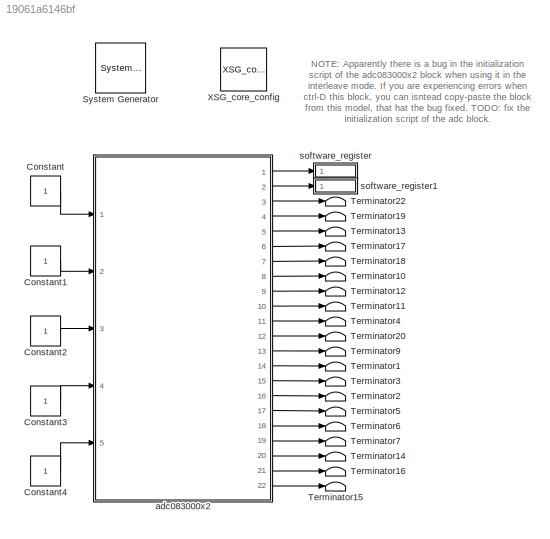
MODEL slx_19061a6146bf
KIND model
BLOCK [Reference]  System Generator  REF=xbsIndex_r4/ System Generator
  AttributesFormatString = System\nGenerator
  Impl_file = ISE Defaults
  Ports = []
  SourceBlock = xbsIndex_r4/ System Generator
  SourceType = Xilinx System Generator Block
  Synth_file = XST Defaults
  Tag = genX
  UserDataPersistent = on
  block_type = sysgen
  clock_wrapper = Clock Enables
  core_generation = According to Block Masks
  dbl_ovrd = According to Block Masks
  dcm_input_clock_period = 100
  deprecated_control = off
  directory = ./adc083000_interleave/sysgen
  eval_field = 0
  has_advanced_control = 0
  incr_netlist = off
  infoedit = System Generator
  package = ff1136
  part = xc5vsx95t
  proj_type = Project Navigator
  run_coregen = off
  sg_icon_stat = 50,50,0,0,token,white,0,58c5b5770fe5f7c311f53dbc6e73f0f6,right,,[ ],[ ]
  sg_mask_display = fprintf('','COMMENT: begin icon graphics');\npatch([0 50 50 0 0 ],[0 0 50 50 0 ],[1 1 1 ]);\npatch([1.6375 16.81 27.31 37.81 48.31 27.31 12.1375 1.6375 ],[36.655 36.655 47.155 36.655 47.155 47.155 47.155 36.655 ],[0.933333 0.203922 0.141176 ]);\npatch([12.1375 27.31 16.81 1.6375 12.1375 ],[26.155 26.155 36.655 36.655 26.155 ],[0.698039 0.0313725 0.219608 ]);\npatch([1.6375 16.81 27.31 12.1375 1.6375 ]...<+327ch>
  sggui_pos = 326,212,464,470
  simulink_period = 1
  speed = -1
  synthesis_tool = XST
  sysclk_period = 8
  testbench = off
  trim_vbits = Everywhere in SubSystem
  xilinxfamily = virtex5
BLOCK [Constant] Constant
BLOCK [Constant] Constant1
BLOCK [Constant] Constant2
BLOCK [Constant] Constant3
BLOCK [Constant] Constant4
BLOCK [Terminator] Terminator1
BLOCK [Terminator] Terminator10
BLOCK [Terminator] Terminator11
BLOCK [Terminator] Terminator12
BLOCK [Terminator] Terminator13
BLOCK [Terminator] Terminator14
BLOCK [Terminator] Terminator15
BLOCK [Terminator] Terminator16
BLOCK [Terminator] Terminator17
BLOCK [Terminator] Terminator18
BLOCK [Terminator] Terminator19
BLOCK [Terminator] Terminator2
BLOCK [Terminator] Terminator20
BLOCK [Terminator] Terminator22
BLOCK [Terminator] Terminator3
BLOCK [Terminator] Terminator4
BLOCK [Terminator] Terminator5
BLOCK [Terminator] Terminator6
BLOCK [Terminator] Terminator7
BLOCK [Terminator] Terminator9
BLOCK [Reference] XSG_core_config  REF=xps_library/XSG_core_config  (lib defined in mdl_00b5cec29cd0, mdl_02ab6ecaa3d1, +5 more)
  MKDIG_clk_src = sys_clk
  Ports = []
  ROACH2_clk_src = adc0_clk
  ROACH_clk_src = adc0_clk
  SourceBlock = xps_library/XSG_core_config
  SourceType = xsg core config
  Tag = xps:xsg
  clk_rate = 125
  clk_src = adc0_clk
  hw_sys = ROACH:sx95t
  sample_period = 1
  synthesis_tool = XST
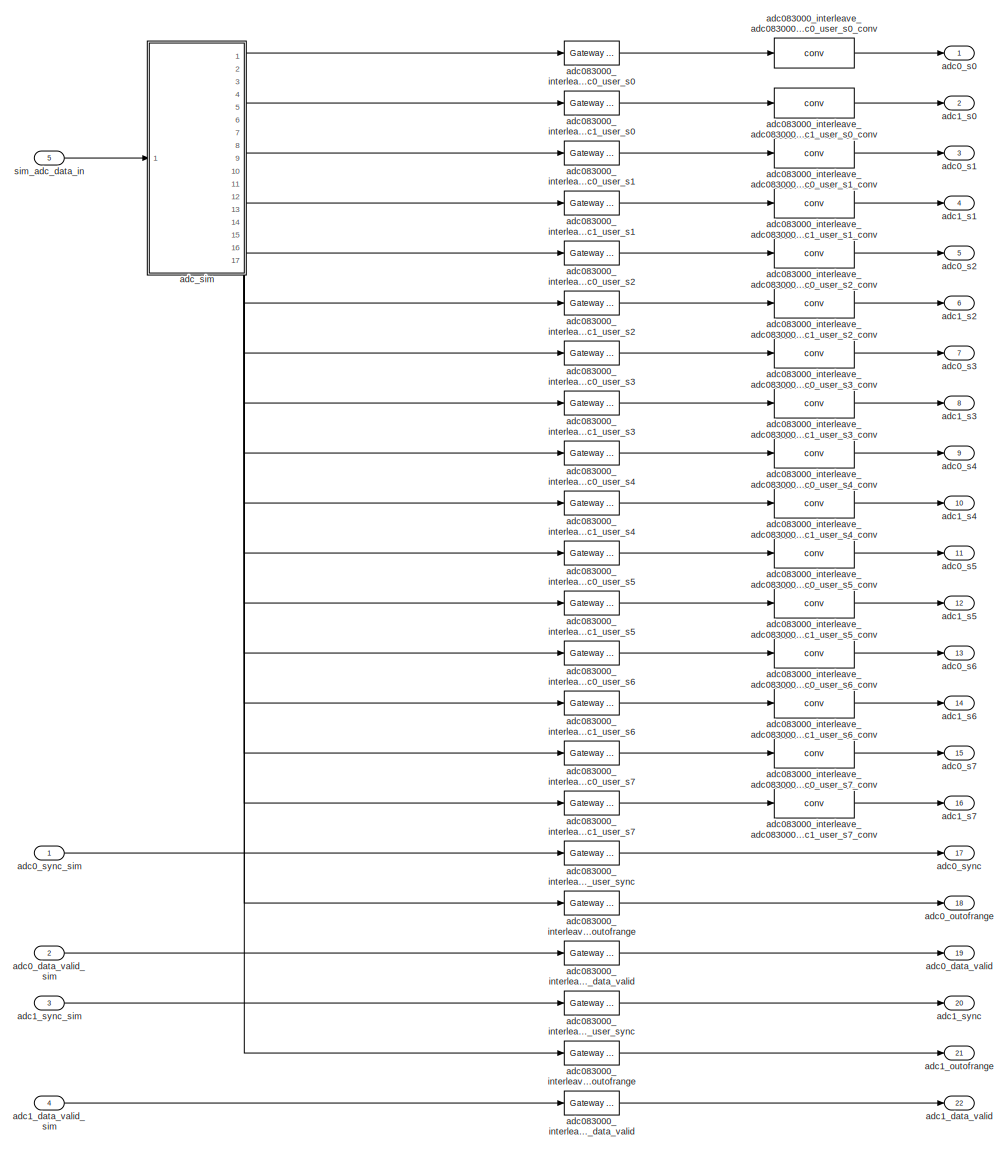
[diagram: adc083000x2 - part 1/1, most of the canvas]
BLOCK [SubSystem] adc083000x2
  AncestorBlock = xps_library/adc083000x2
  FunctionWithSeparateData = off
  MaskHideContents = off
  MinAlgLoopOccurrences = off
  Opaque = off
  Ports = [5, 22]
  PropExecContextOutsideSubsystem = off
  RTWSystemCode = Auto
  RequestExecContextInheritance = off
  Tag = xps:adc083000x2
BLOCK [Reference] adc083000x2/adc083000_interleave_adc083000x2_adc0_user_data_valid  REF=xbsIndex_r4/Gateway In
  ADCChannel = '1'
  LOCs = {}
  Ports = [1, 1]
  SourceBlock = xbsIndex_r4/Gateway In
  SourceType = Xilinx Gateway In Block
  UseAsADC = off
  arith_type = Unsigned
  bin_pt = 0
  block_type = gatewayin
  dbl_ovrd = off
  exp_width = 8
  frac_width = 24
  gui_display_data_type = Fixed-point
  has_advanced_control = 0
  hdl_port = on
  infoedit = Gateway in block.  Converts inputs of type Simulink integer, single, double and fixed-point to  Xilinx fixed-point or floating-point data type.<br><br>Hardware notes:  In hardware these blocks become top level input ports.  <repeated x22 — deduplicated; at blocks: adc083000_interleave_adc083000x2_adc0_user_data…, adc083000_interleave_adc083000x2_adc0_user_outo…, adc083000_interleave_adc083000x2_adc0_user_s0, adc083000_interleave_adc083000x2_adc0_user_s1, adc083000_interleave_adc083000x2_adc0_user_s2, adc083000_interleave_adc083000x2_adc0_user_s3, adc083000_interleave_adc083000x2_adc0_user_s4, adc083000_interleave_adc083000x2_adc0_user_s5, adc083000_interleave_adc083000x2_adc0_user_s6, adc083000_interleave_adc083000x2_adc0_user_s7, adc083000_interleave_adc083000x2_adc0_user_sync, adc083000_interleave_adc083000x2_adc1_user_data…, adc083000_interleave_adc083000x2_adc1_user_outo…, adc083000_interleave_adc083000x2_adc1_user_s0, adc083000_interleave_adc083000x2_adc1_user_s1, adc083000_interleave_adc083000x2_adc1_user_s2, +6 more>
  inherit_from_input = off
  locs_specified = off
  n_bits = 1
  overflow = Saturate
  period = 1
  preci_type = Single
  quantization = Round  (unbiased: +/- Inf)
  sg_icon_stat = 55,24,1,1,white,yellow,1,00d3666e,right,,[ ],[ ]
  sg_mask_display = fprintf('','COMMENT: begin icon graphics');\npatch([0 55 55 0 0 ],[0 0 24 24 0 ],[0.95 0.93 0.65 ]);\nplot([0 55 55 0 0 ],[0 0 24 24 0 ]);\npatch([20.325 24.66 27.66 30.66 33.66 27.66 23.325 20.325 ],[15.33 15.33 18.33 15.33 18.33 18.33 18.33 15.33 ],[1 1 1 ]);\npatch([23.325 27.66 24.66 20.325 23.325 ],[12.33 12.33 15.33 15.33 12.33 ],[0.985 0.979 0.895 ]);\npatch([20.325 24.66 27.66 23.325 20.325 ],[...<+395ch>  <repeated x22 — deduplicated; at blocks: adc083000_interleave_adc083000x2_adc0_user_data…, adc083000_interleave_adc083000x2_adc0_user_outo…, adc083000_interleave_adc083000x2_adc0_user_s0, adc083000_interleave_adc083000x2_adc0_user_s1, adc083000_interleave_adc083000x2_adc0_user_s2, adc083000_interleave_adc083000x2_adc0_user_s3, adc083000_interleave_adc083000x2_adc0_user_s4, adc083000_interleave_adc083000x2_adc0_user_s5, adc083000_interleave_adc083000x2_adc0_user_s6, adc083000_interleave_adc083000x2_adc0_user_s7, adc083000_interleave_adc083000x2_adc0_user_sync, adc083000_interleave_adc083000x2_adc1_user_data…, adc083000_interleave_adc083000x2_adc1_user_outo…, adc083000_interleave_adc083000x2_adc1_user_s0, adc083000_interleave_adc083000x2_adc1_user_s1, adc083000_interleave_adc083000x2_adc1_user_s2, +6 more>
  sggui_pos = -1,-1,-1,-1
  timing_constraint = None
  xl_area = [0,0,0,0,0,0,0]
  xl_use_area = off
BLOCK [Reference] adc083000x2/adc083000_interleave_adc083000x2_adc0_user_outofrange  REF=xbsIndex_r4/Gateway In
  ADCChannel = '1'
  LOCs = {}
  Ports = [1, 1]
  SourceBlock = xbsIndex_r4/Gateway In
  SourceType = Xilinx Gateway In Block
  UseAsADC = off
  arith_type = Unsigned
  bin_pt = 0
  block_type = gatewayin
  dbl_ovrd = off
  exp_width = 8
  frac_width = 24
  gui_display_data_type = Fixed-point
  has_advanced_control = 0
  hdl_port = on
  inherit_from_input = off
  locs_specified = off
  n_bits = 4
  overflow = Saturate
  period = 1
  preci_type = Single
  quantization = Round  (unbiased: +/- Inf)
  sg_icon_stat = 55,24,1,1,white,yellow,1,00d3666e,right,,[ ],[ ]
  sggui_pos = -1,-1,-1,-1
  timing_constraint = None
  xl_area = [0,0,0,0,0,0,0]
  xl_use_area = off
BLOCK [Reference] adc083000x2/adc083000_interleave_adc083000x2_adc0_user_s0  REF=xbsIndex_r4/Gateway In
  ADCChannel = '1'
  LOCs = {}
  Ports = [1, 1]
  SourceBlock = xbsIndex_r4/Gateway In
  SourceType = Xilinx Gateway In Block
  UseAsADC = off
  arith_type = Unsigned
  bin_pt = 0
  block_type = gatewayin
  dbl_ovrd = off
  exp_width = 8
  frac_width = 24
  gui_display_data_type = Fixed-point
  has_advanced_control = 0
  hdl_port = on
  inherit_from_input = off
  locs_specified = off
  n_bits = 8
  overflow = Saturate
  period = 1
  preci_type = Single
  quantization = Round  (unbiased: +/- Inf)
  sg_icon_stat = 55,24,1,1,white,yellow,1,00d3666e,right,,[ ],[ ]
  sggui_pos = -1,-1,-1,-1
  timing_constraint = None
  xl_area = [0,0,0,0,0,0,0]
  xl_use_area = off
BLOCK [Reference] adc083000x2/adc083000_interleave_adc083000x2_adc0_user_s0_conv  REF=xps_library/ADCs/conv  (lib defined in mdl_00b5cec29cd0, mdl_02ab6ecaa3d1, +5 more)
  Ports = [1, 1]
  SourceBlock = xps_library/ADCs/conv
  bit_width = 8
BLOCK [Reference] adc083000x2/adc083000_interleave_adc083000x2_adc0_user_s1  REF=xbsIndex_r4/Gateway In
  ADCChannel = '1'
  LOCs = {}
  Ports = [1, 1]
  SourceBlock = xbsIndex_r4/Gateway In
  SourceType = Xilinx Gateway In Block
  UseAsADC = off
  arith_type = Unsigned
  bin_pt = 0
  block_type = gatewayin
  dbl_ovrd = off
  exp_width = 8
  frac_width = 24
  gui_display_data_type = Fixed-point
  has_advanced_control = 0
  hdl_port = on
  inherit_from_input = off
  locs_specified = off
  n_bits = 8
  overflow = Saturate
  period = 1
  preci_type = Single
  quantization = Round  (unbiased: +/- Inf)
  sg_icon_stat = 55,24,1,1,white,yellow,1,00d3666e,right,,[ ],[ ]
  sggui_pos = -1,-1,-1,-1
  timing_constraint = None
  xl_area = [0,0,0,0,0,0,0]
  xl_use_area = off
BLOCK [Reference] adc083000x2/adc083000_interleave_adc083000x2_adc0_user_s1_conv  REF=xps_library/ADCs/conv  (lib defined in mdl_00b5cec29cd0, mdl_02ab6ecaa3d1, +5 more)
  Ports = [1, 1]
  SourceBlock = xps_library/ADCs/conv
  bit_width = 8
BLOCK [Reference] adc083000x2/adc083000_interleave_adc083000x2_adc0_user_s2  REF=xbsIndex_r4/Gateway In
  ADCChannel = '1'
  LOCs = {}
  Ports = [1, 1]
  SourceBlock = xbsIndex_r4/Gateway In
  SourceType = Xilinx Gateway In Block
  UseAsADC = off
  arith_type = Unsigned
  bin_pt = 0
  block_type = gatewayin
  dbl_ovrd = off
  exp_width = 8
  frac_width = 24
  gui_display_data_type = Fixed-point
  has_advanced_control = 0
  hdl_port = on
  inherit_from_input = off
  locs_specified = off
  n_bits = 8
  overflow = Saturate
  period = 1
  preci_type = Single
  quantization = Round  (unbiased: +/- Inf)
  sg_icon_stat = 55,24,1,1,white,yellow,1,00d3666e,right,,[ ],[ ]
  sggui_pos = -1,-1,-1,-1
  timing_constraint = None
  xl_area = [0,0,0,0,0,0,0]
  xl_use_area = off
BLOCK [Reference] adc083000x2/adc083000_interleave_adc083000x2_adc0_user_s2_conv  REF=xps_library/ADCs/conv  (lib defined in mdl_00b5cec29cd0, mdl_02ab6ecaa3d1, +5 more)
  Ports = [1, 1]
  SourceBlock = xps_library/ADCs/conv
  bit_width = 8
BLOCK [Reference] adc083000x2/adc083000_interleave_adc083000x2_adc0_user_s3  REF=xbsIndex_r4/Gateway In
  ADCChannel = '1'
  LOCs = {}
  Ports = [1, 1]
  SourceBlock = xbsIndex_r4/Gateway In
  SourceType = Xilinx Gateway In Block
  UseAsADC = off
  arith_type = Unsigned
  bin_pt = 0
  block_type = gatewayin
  dbl_ovrd = off
  exp_width = 8
  frac_width = 24
  gui_display_data_type = Fixed-point
  has_advanced_control = 0
  hdl_port = on
  inherit_from_input = off
  locs_specified = off
  n_bits = 8
  overflow = Saturate
  period = 1
  preci_type = Single
  quantization = Round  (unbiased: +/- Inf)
  sg_icon_stat = 55,24,1,1,white,yellow,1,00d3666e,right,,[ ],[ ]
  sggui_pos = -1,-1,-1,-1
  timing_constraint = None
  xl_area = [0,0,0,0,0,0,0]
  xl_use_area = off
BLOCK [Reference] adc083000x2/adc083000_interleave_adc083000x2_adc0_user_s3_conv  REF=xps_library/ADCs/conv  (lib defined in mdl_00b5cec29cd0, mdl_02ab6ecaa3d1, +5 more)
  Ports = [1, 1]
  SourceBlock = xps_library/ADCs/conv
  bit_width = 8
BLOCK [Reference] adc083000x2/adc083000_interleave_adc083000x2_adc0_user_s4  REF=xbsIndex_r4/Gateway In
  ADCChannel = '1'
  LOCs = {}
  Ports = [1, 1]
  SourceBlock = xbsIndex_r4/Gateway In
  SourceType = Xilinx Gateway In Block
  UseAsADC = off
  arith_type = Unsigned
  bin_pt = 0
  block_type = gatewayin
  dbl_ovrd = off
  exp_width = 8
  frac_width = 24
  gui_display_data_type = Fixed-point
  has_advanced_control = 0
  hdl_port = on
  inherit_from_input = off
  locs_specified = off
  n_bits = 8
  overflow = Saturate
  period = 1
  preci_type = Single
  quantization = Round  (unbiased: +/- Inf)
  sg_icon_stat = 55,24,1,1,white,yellow,1,00d3666e,right,,[ ],[ ]
  sggui_pos = -1,-1,-1,-1
  timing_constraint = None
  xl_area = [0,0,0,0,0,0,0]
  xl_use_area = off
BLOCK [Reference] adc083000x2/adc083000_interleave_adc083000x2_adc0_user_s4_conv  REF=xps_library/ADCs/conv  (lib defined in mdl_00b5cec29cd0, mdl_02ab6ecaa3d1, +5 more)
  Ports = [1, 1]
  SourceBlock = xps_library/ADCs/conv
  bit_width = 8
BLOCK [Reference] adc083000x2/adc083000_interleave_adc083000x2_adc0_user_s5  REF=xbsIndex_r4/Gateway In
  ADCChannel = '1'
  LOCs = {}
  Ports = [1, 1]
  SourceBlock = xbsIndex_r4/Gateway In
  SourceType = Xilinx Gateway In Block
  UseAsADC = off
  arith_type = Unsigned
  bin_pt = 0
  block_type = gatewayin
  dbl_ovrd = off
  exp_width = 8
  frac_width = 24
  gui_display_data_type = Fixed-point
  has_advanced_control = 0
  hdl_port = on
  inherit_from_input = off
  locs_specified = off
  n_bits = 8
  overflow = Saturate
  period = 1
  preci_type = Single
  quantization = Round  (unbiased: +/- Inf)
  sg_icon_stat = 55,24,1,1,white,yellow,1,00d3666e,right,,[ ],[ ]
  sggui_pos = -1,-1,-1,-1
  timing_constraint = None
  xl_area = [0,0,0,0,0,0,0]
  xl_use_area = off
BLOCK [Reference] adc083000x2/adc083000_interleave_adc083000x2_adc0_user_s5_conv  REF=xps_library/ADCs/conv  (lib defined in mdl_00b5cec29cd0, mdl_02ab6ecaa3d1, +5 more)
  Ports = [1, 1]
  SourceBlock = xps_library/ADCs/conv
  bit_width = 8
BLOCK [Reference] adc083000x2/adc083000_interleave_adc083000x2_adc0_user_s6  REF=xbsIndex_r4/Gateway In
  ADCChannel = '1'
  LOCs = {}
  Ports = [1, 1]
  SourceBlock = xbsIndex_r4/Gateway In
  SourceType = Xilinx Gateway In Block
  UseAsADC = off
  arith_type = Unsigned
  bin_pt = 0
  block_type = gatewayin
  dbl_ovrd = off
  exp_width = 8
  frac_width = 24
  gui_display_data_type = Fixed-point
  has_advanced_control = 0
  hdl_port = on
  inherit_from_input = off
  locs_specified = off
  n_bits = 8
  overflow = Saturate
  period = 1
  preci_type = Single
  quantization = Round  (unbiased: +/- Inf)
  sg_icon_stat = 55,24,1,1,white,yellow,1,00d3666e,right,,[ ],[ ]
  sggui_pos = -1,-1,-1,-1
  timing_constraint = None
  xl_area = [0,0,0,0,0,0,0]
  xl_use_area = off
BLOCK [Reference] adc083000x2/adc083000_interleave_adc083000x2_adc0_user_s6_conv  REF=xps_library/ADCs/conv  (lib defined in mdl_00b5cec29cd0, mdl_02ab6ecaa3d1, +5 more)
  Ports = [1, 1]
  SourceBlock = xps_library/ADCs/conv
  bit_width = 8
BLOCK [Reference] adc083000x2/adc083000_interleave_adc083000x2_adc0_user_s7  REF=xbsIndex_r4/Gateway In
  ADCChannel = '1'
  LOCs = {}
  Ports = [1, 1]
  SourceBlock = xbsIndex_r4/Gateway In
  SourceType = Xilinx Gateway In Block
  UseAsADC = off
  arith_type = Unsigned
  bin_pt = 0
  block_type = gatewayin
  dbl_ovrd = off
  exp_width = 8
  frac_width = 24
  gui_display_data_type = Fixed-point
  has_advanced_control = 0
  hdl_port = on
  inherit_from_input = off
  locs_specified = off
  n_bits = 8
  overflow = Saturate
  period = 1
  preci_type = Single
  quantization = Round  (unbiased: +/- Inf)
  sg_icon_stat = 55,24,1,1,white,yellow,1,00d3666e,right,,[ ],[ ]
  sggui_pos = -1,-1,-1,-1
  timing_constraint = None
  xl_area = [0,0,0,0,0,0,0]
  xl_use_area = off
BLOCK [Reference] adc083000x2/adc083000_interleave_adc083000x2_adc0_user_s7_conv  REF=xps_library/ADCs/conv  (lib defined in mdl_00b5cec29cd0, mdl_02ab6ecaa3d1, +5 more)
  Ports = [1, 1]
  SourceBlock = xps_library/ADCs/conv
  bit_width = 8
BLOCK [Reference] adc083000x2/adc083000_interleave_adc083000x2_adc0_user_sync  REF=xbsIndex_r4/Gateway In
  ADCChannel = '1'
  LOCs = {}
  Ports = [1, 1]
  SourceBlock = xbsIndex_r4/Gateway In
  SourceType = Xilinx Gateway In Block
  UseAsADC = off
  arith_type = Unsigned
  bin_pt = 0
  block_type = gatewayin
  dbl_ovrd = off
  exp_width = 8
  frac_width = 24
  gui_display_data_type = Fixed-point
  has_advanced_control = 0
  hdl_port = on
  inherit_from_input = off
  locs_specified = off
  n_bits = 4
  overflow = Saturate
  period = 1
  preci_type = Single
  quantization = Round  (unbiased: +/- Inf)
  sg_icon_stat = 55,24,1,1,white,yellow,1,00d3666e,right,,[ ],[ ]
  sggui_pos = -1,-1,-1,-1
  timing_constraint = None
  xl_area = [0,0,0,0,0,0,0]
  xl_use_area = off
BLOCK [Reference] adc083000x2/adc083000_interleave_adc083000x2_adc1_user_data_valid  REF=xbsIndex_r4/Gateway In
  ADCChannel = '1'
  LOCs = {}
  Ports = [1, 1]
  SourceBlock = xbsIndex_r4/Gateway In
  SourceType = Xilinx Gateway In Block
  UseAsADC = off
  arith_type = Unsigned
  bin_pt = 0
  block_type = gatewayin
  dbl_ovrd = off
  exp_width = 8
  frac_width = 24
  gui_display_data_type = Fixed-point
  has_advanced_control = 0
  hdl_port = on
  inherit_from_input = off
  locs_specified = off
  n_bits = 1
  overflow = Saturate
  period = 1
  preci_type = Single
  quantization = Round  (unbiased: +/- Inf)
  sg_icon_stat = 55,24,1,1,white,yellow,1,00d3666e,right,,[ ],[ ]
  sggui_pos = -1,-1,-1,-1
  timing_constraint = None
  xl_area = [0,0,0,0,0,0,0]
  xl_use_area = off
BLOCK [Reference] adc083000x2/adc083000_interleave_adc083000x2_adc1_user_outofrange  REF=xbsIndex_r4/Gateway In
  ADCChannel = '1'
  LOCs = {}
  Ports = [1, 1]
  SourceBlock = xbsIndex_r4/Gateway In
  SourceType = Xilinx Gateway In Block
  UseAsADC = off
  arith_type = Unsigned
  bin_pt = 0
  block_type = gatewayin
  dbl_ovrd = off
  exp_width = 8
  frac_width = 24
  gui_display_data_type = Fixed-point
  has_advanced_control = 0
  hdl_port = on
  inherit_from_input = off
  locs_specified = off
  n_bits = 4
  overflow = Saturate
  period = 1
  preci_type = Single
  quantization = Round  (unbiased: +/- Inf)
  sg_icon_stat = 55,24,1,1,white,yellow,1,00d3666e,right,,[ ],[ ]
  sggui_pos = -1,-1,-1,-1
  timing_constraint = None
  xl_area = [0,0,0,0,0,0,0]
  xl_use_area = off
BLOCK [Reference] adc083000x2/adc083000_interleave_adc083000x2_adc1_user_s0  REF=xbsIndex_r4/Gateway In
  ADCChannel = '1'
  LOCs = {}
  Ports = [1, 1]
  SourceBlock = xbsIndex_r4/Gateway In
  SourceType = Xilinx Gateway In Block
  UseAsADC = off
  arith_type = Unsigned
  bin_pt = 0
  block_type = gatewayin
  dbl_ovrd = off
  exp_width = 8
  frac_width = 24
  gui_display_data_type = Fixed-point
  has_advanced_control = 0
  hdl_port = on
  inherit_from_input = off
  locs_specified = off
  n_bits = 8
  overflow = Saturate
  period = 1
  preci_type = Single
  quantization = Round  (unbiased: +/- Inf)
  sg_icon_stat = 55,24,1,1,white,yellow,1,00d3666e,right,,[ ],[ ]
  sggui_pos = -1,-1,-1,-1
  timing_constraint = None
  xl_area = [0,0,0,0,0,0,0]
  xl_use_area = off
BLOCK [Reference] adc083000x2/adc083000_interleave_adc083000x2_adc1_user_s0_conv  REF=xps_library/ADCs/conv  (lib defined in mdl_00b5cec29cd0, mdl_02ab6ecaa3d1, +5 more)
  Ports = [1, 1]
  SourceBlock = xps_library/ADCs/conv
  bit_width = 8
BLOCK [Reference] adc083000x2/adc083000_interleave_adc083000x2_adc1_user_s1  REF=xbsIndex_r4/Gateway In
  ADCChannel = '1'
  LOCs = {}
  Ports = [1, 1]
  SourceBlock = xbsIndex_r4/Gateway In
  SourceType = Xilinx Gateway In Block
  UseAsADC = off
  arith_type = Unsigned
  bin_pt = 0
  block_type = gatewayin
  dbl_ovrd = off
  exp_width = 8
  frac_width = 24
  gui_display_data_type = Fixed-point
  has_advanced_control = 0
  hdl_port = on
  inherit_from_input = off
  locs_specified = off
  n_bits = 8
  overflow = Saturate
  period = 1
  preci_type = Single
  quantization = Round  (unbiased: +/- Inf)
  sg_icon_stat = 55,24,1,1,white,yellow,1,00d3666e,right,,[ ],[ ]
  sggui_pos = -1,-1,-1,-1
  timing_constraint = None
  xl_area = [0,0,0,0,0,0,0]
  xl_use_area = off
BLOCK [Reference] adc083000x2/adc083000_interleave_adc083000x2_adc1_user_s1_conv  REF=xps_library/ADCs/conv  (lib defined in mdl_00b5cec29cd0, mdl_02ab6ecaa3d1, +5 more)
  Ports = [1, 1]
  SourceBlock = xps_library/ADCs/conv
  bit_width = 8
BLOCK [Reference] adc083000x2/adc083000_interleave_adc083000x2_adc1_user_s2  REF=xbsIndex_r4/Gateway In
  ADCChannel = '1'
  LOCs = {}
  Ports = [1, 1]
  SourceBlock = xbsIndex_r4/Gateway In
  SourceType = Xilinx Gateway In Block
  UseAsADC = off
  arith_type = Unsigned
  bin_pt = 0
  block_type = gatewayin
  dbl_ovrd = off
  exp_width = 8
  frac_width = 24
  gui_display_data_type = Fixed-point
  has_advanced_control = 0
  hdl_port = on
  inherit_from_input = off
  locs_specified = off
  n_bits = 8
  overflow = Saturate
  period = 1
  preci_type = Single
  quantization = Round  (unbiased: +/- Inf)
  sg_icon_stat = 55,24,1,1,white,yellow,1,00d3666e,right,,[ ],[ ]
  sggui_pos = -1,-1,-1,-1
  timing_constraint = None
  xl_area = [0,0,0,0,0,0,0]
  xl_use_area = off
BLOCK [Reference] adc083000x2/adc083000_interleave_adc083000x2_adc1_user_s2_conv  REF=xps_library/ADCs/conv  (lib defined in mdl_00b5cec29cd0, mdl_02ab6ecaa3d1, +5 more)
  Ports = [1, 1]
  SourceBlock = xps_library/ADCs/conv
  bit_width = 8
BLOCK [Reference] adc083000x2/adc083000_interleave_adc083000x2_adc1_user_s3  REF=xbsIndex_r4/Gateway In
  ADCChannel = '1'
  LOCs = {}
  Ports = [1, 1]
  SourceBlock = xbsIndex_r4/Gateway In
  SourceType = Xilinx Gateway In Block
  UseAsADC = off
  arith_type = Unsigned
  bin_pt = 0
  block_type = gatewayin
  dbl_ovrd = off
  exp_width = 8
  frac_width = 24
  gui_display_data_type = Fixed-point
  has_advanced_control = 0
  hdl_port = on
  inherit_from_input = off
  locs_specified = off
  n_bits = 8
  overflow = Saturate
  period = 1
  preci_type = Single
  quantization = Round  (unbiased: +/- Inf)
  sg_icon_stat = 55,24,1,1,white,yellow,1,00d3666e,right,,[ ],[ ]
  sggui_pos = -1,-1,-1,-1
  timing_constraint = None
  xl_area = [0,0,0,0,0,0,0]
  xl_use_area = off
BLOCK [Reference] adc083000x2/adc083000_interleave_adc083000x2_adc1_user_s3_conv  REF=xps_library/ADCs/conv  (lib defined in mdl_00b5cec29cd0, mdl_02ab6ecaa3d1, +5 more)
  Ports = [1, 1]
  SourceBlock = xps_library/ADCs/conv
  bit_width = 8
BLOCK [Reference] adc083000x2/adc083000_interleave_adc083000x2_adc1_user_s4  REF=xbsIndex_r4/Gateway In
  ADCChannel = '1'
  LOCs = {}
  Ports = [1, 1]
  SourceBlock = xbsIndex_r4/Gateway In
  SourceType = Xilinx Gateway In Block
  UseAsADC = off
  arith_type = Unsigned
  bin_pt = 0
  block_type = gatewayin
  dbl_ovrd = off
  exp_width = 8
  frac_width = 24
  gui_display_data_type = Fixed-point
  has_advanced_control = 0
  hdl_port = on
  inherit_from_input = off
  locs_specified = off
  n_bits = 8
  overflow = Saturate
  period = 1
  preci_type = Single
  quantization = Round  (unbiased: +/- Inf)
  sg_icon_stat = 55,24,1,1,white,yellow,1,00d3666e,right,,[ ],[ ]
  sggui_pos = -1,-1,-1,-1
  timing_constraint = None
  xl_area = [0,0,0,0,0,0,0]
  xl_use_area = off
BLOCK [Reference] adc083000x2/adc083000_interleave_adc083000x2_adc1_user_s4_conv  REF=xps_library/ADCs/conv  (lib defined in mdl_00b5cec29cd0, mdl_02ab6ecaa3d1, +5 more)
  Ports = [1, 1]
  SourceBlock = xps_library/ADCs/conv
  bit_width = 8
BLOCK [Reference] adc083000x2/adc083000_interleave_adc083000x2_adc1_user_s5  REF=xbsIndex_r4/Gateway In
  ADCChannel = '1'
  LOCs = {}
  Ports = [1, 1]
  SourceBlock = xbsIndex_r4/Gateway In
  SourceType = Xilinx Gateway In Block
  UseAsADC = off
  arith_type = Unsigned
  bin_pt = 0
  block_type = gatewayin
  dbl_ovrd = off
  exp_width = 8
  frac_width = 24
  gui_display_data_type = Fixed-point
  has_advanced_control = 0
  hdl_port = on
  inherit_from_input = off
  locs_specified = off
  n_bits = 8
  overflow = Saturate
  period = 1
  preci_type = Single
  quantization = Round  (unbiased: +/- Inf)
  sg_icon_stat = 55,24,1,1,white,yellow,1,00d3666e,right,,[ ],[ ]
  sggui_pos = -1,-1,-1,-1
  timing_constraint = None
  xl_area = [0,0,0,0,0,0,0]
  xl_use_area = off
BLOCK [Reference] adc083000x2/adc083000_interleave_adc083000x2_adc1_user_s5_conv  REF=xps_library/ADCs/conv  (lib defined in mdl_00b5cec29cd0, mdl_02ab6ecaa3d1, +5 more)
  Ports = [1, 1]
  SourceBlock = xps_library/ADCs/conv
  bit_width = 8
BLOCK [Reference] adc083000x2/adc083000_interleave_adc083000x2_adc1_user_s6  REF=xbsIndex_r4/Gateway In
  ADCChannel = '1'
  LOCs = {}
  Ports = [1, 1]
  SourceBlock = xbsIndex_r4/Gateway In
  SourceType = Xilinx Gateway In Block
  UseAsADC = off
  arith_type = Unsigned
  bin_pt = 0
  block_type = gatewayin
  dbl_ovrd = off
  exp_width = 8
  frac_width = 24
  gui_display_data_type = Fixed-point
  has_advanced_control = 0
  hdl_port = on
  inherit_from_input = off
  locs_specified = off
  n_bits = 8
  overflow = Saturate
  period = 1
  preci_type = Single
  quantization = Round  (unbiased: +/- Inf)
  sg_icon_stat = 55,24,1,1,white,yellow,1,00d3666e,right,,[ ],[ ]
  sggui_pos = -1,-1,-1,-1
  timing_constraint = None
  xl_area = [0,0,0,0,0,0,0]
  xl_use_area = off
BLOCK [Reference] adc083000x2/adc083000_interleave_adc083000x2_adc1_user_s6_conv  REF=xps_library/ADCs/conv  (lib defined in mdl_00b5cec29cd0, mdl_02ab6ecaa3d1, +5 more)
  Ports = [1, 1]
  SourceBlock = xps_library/ADCs/conv
  bit_width = 8
BLOCK [Reference] adc083000x2/adc083000_interleave_adc083000x2_adc1_user_s7  REF=xbsIndex_r4/Gateway In
  ADCChannel = '1'
  LOCs = {}
  Ports = [1, 1]
  SourceBlock = xbsIndex_r4/Gateway In
  SourceType = Xilinx Gateway In Block
  UseAsADC = off
  arith_type = Unsigned
  bin_pt = 0
  block_type = gatewayin
  dbl_ovrd = off
  exp_width = 8
  frac_width = 24
  gui_display_data_type = Fixed-point
  has_advanced_control = 0
  hdl_port = on
  inherit_from_input = off
  locs_specified = off
  n_bits = 8
  overflow = Saturate
  period = 1
  preci_type = Single
  quantization = Round  (unbiased: +/- Inf)
  sg_icon_stat = 55,24,1,1,white,yellow,1,00d3666e,right,,[ ],[ ]
  sggui_pos = -1,-1,-1,-1
  timing_constraint = None
  xl_area = [0,0,0,0,0,0,0]
  xl_use_area = off
BLOCK [Reference] adc083000x2/adc083000_interleave_adc083000x2_adc1_user_s7_conv  REF=xps_library/ADCs/conv  (lib defined in mdl_00b5cec29cd0, mdl_02ab6ecaa3d1, +5 more)
  Ports = [1, 1]
  SourceBlock = xps_library/ADCs/conv
  bit_width = 8
BLOCK [Reference] adc083000x2/adc083000_interleave_adc083000x2_adc1_user_sync  REF=xbsIndex_r4/Gateway In
  ADCChannel = '1'
  LOCs = {}
  Ports = [1, 1]
  SourceBlock = xbsIndex_r4/Gateway In
  SourceType = Xilinx Gateway In Block
  UseAsADC = off
  arith_type = Unsigned
  bin_pt = 0
  block_type = gatewayin
  dbl_ovrd = off
  exp_width = 8
  frac_width = 24
  gui_display_data_type = Fixed-point
  has_advanced_control = 0
  hdl_port = on
  inherit_from_input = off
  locs_specified = off
  n_bits = 4
  overflow = Saturate
  period = 1
  preci_type = Single
  quantization = Round  (unbiased: +/- Inf)
  sg_icon_stat = 55,24,1,1,white,yellow,1,00d3666e,right,,[ ],[ ]
  sggui_pos = -1,-1,-1,-1
  timing_constraint = None
  xl_area = [0,0,0,0,0,0,0]
  xl_use_area = off
BLOCK [Outport] adc083000x2/adc0_data_valid
  IconDisplay = Port number
  Port = 19
BLOCK [Inport] adc083000x2/adc0_data_valid_sim
  IconDisplay = Port number
  Port = 2
BLOCK [Outport] adc083000x2/adc0_outofrange
  IconDisplay = Port number
  Port = 18
BLOCK [Outport] adc083000x2/adc0_s0
  IconDisplay = Port number
BLOCK [Outport] adc083000x2/adc0_s1
  IconDisplay = Port number
  Port = 3
BLOCK [Outport] adc083000x2/adc0_s2
  IconDisplay = Port number
  Port = 5
BLOCK [Outport] adc083000x2/adc0_s3
  IconDisplay = Port number
  Port = 7
BLOCK [Outport] adc083000x2/adc0_s4
  IconDisplay = Port number
  Port = 9
BLOCK [Outport] adc083000x2/adc0_s5
  IconDisplay = Port number
  Port = 11
BLOCK [Outport] adc083000x2/adc0_s6
  IconDisplay = Port number
  Port = 13
BLOCK [Outport] adc083000x2/adc0_s7
  IconDisplay = Port number
  Port = 15
BLOCK [Outport] adc083000x2/adc0_sync
  IconDisplay = Port number
  Port = 17
BLOCK [Inport] adc083000x2/adc0_sync_sim
  IconDisplay = Port number
BLOCK [Outport] adc083000x2/adc1_data_valid
  IconDisplay = Port number
  Port = 22
BLOCK [Inport] adc083000x2/adc1_data_valid_sim
  IconDisplay = Port number
  Port = 4
BLOCK [Outport] adc083000x2/adc1_outofrange
  IconDisplay = Port number
  Port = 21
BLOCK [Outport] adc083000x2/adc1_s0
  IconDisplay = Port number
  Port = 2
BLOCK [Outport] adc083000x2/adc1_s1
  IconDisplay = Port number
  Port = 4
BLOCK [Outport] adc083000x2/adc1_s2
  IconDisplay = Port number
  Port = 6
BLOCK [Outport] adc083000x2/adc1_s3
  IconDisplay = Port number
  Port = 8
BLOCK [Outport] adc083000x2/adc1_s4
  IconDisplay = Port number
  Port = 10
BLOCK [Outport] adc083000x2/adc1_s5
  IconDisplay = Port number
  Port = 12
BLOCK [Outport] adc083000x2/adc1_s6
  IconDisplay = Port number
  Port = 14
BLOCK [Outport] adc083000x2/adc1_s7
  IconDisplay = Port number
  Port = 16
BLOCK [Outport] adc083000x2/adc1_sync
  IconDisplay = Port number
  Port = 20
BLOCK [Inport] adc083000x2/adc1_sync_sim
  IconDisplay = Port number
  Port = 3
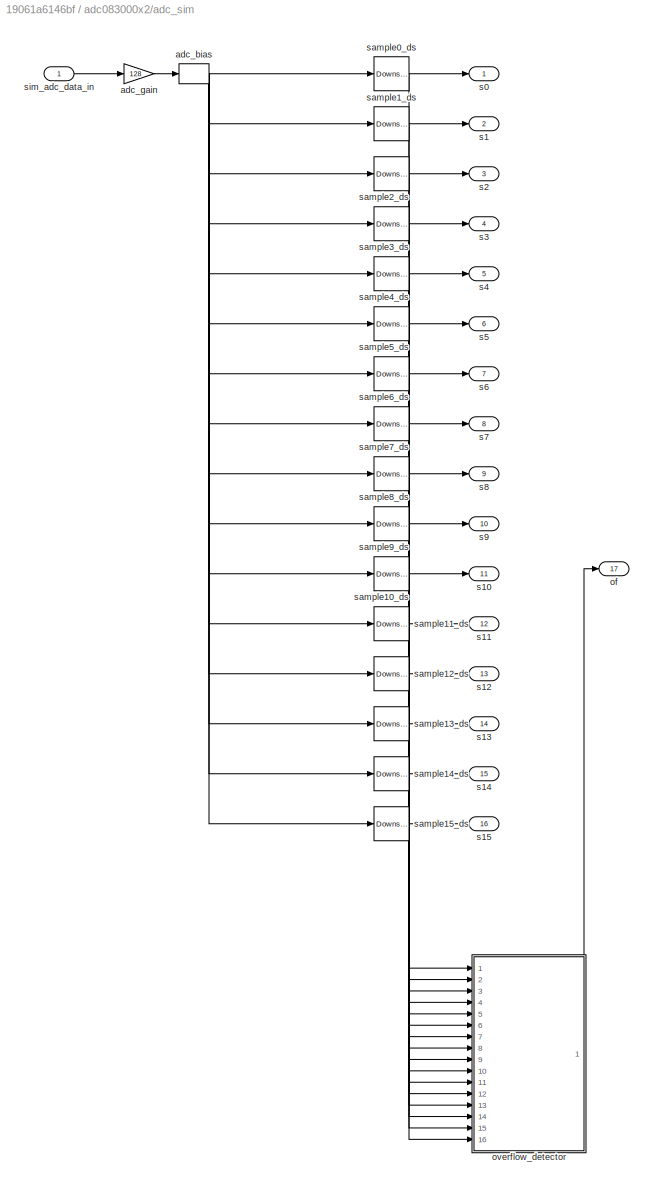
BLOCK [SubSystem] adc083000x2/adc_sim
  AncestorBlock = xps_library/ADCs/adc_sim
  FunctionWithSeparateData = off
  MaskHideContents = off
  MinAlgLoopOccurrences = off
  Opaque = off
  Ports = [1, 17]
  PropExecContextOutsideSubsystem = off
  RTWSystemCode = Auto
  RequestExecContextInheritance = off
  UserDataPersistent = on
BLOCK [Bias] adc083000x2/adc_sim/adc_bias
  Bias = 128
BLOCK [Gain] adc083000x2/adc_sim/adc_gain
  Gain = 128
  OutDataTypeStr = Inherit: Inherit via internal rule
  ParamDataTypeStr = Inherit: Inherit via internal rule
  SaturateOnIntegerOverflow = off
BLOCK [Outport] adc083000x2/adc_sim/of
  IconDisplay = Port number
  Port = 17
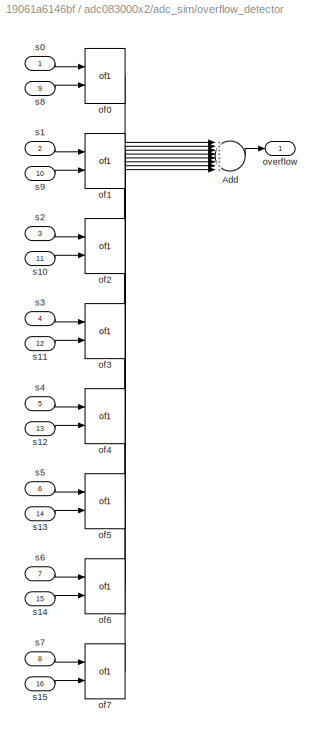
BLOCK [SubSystem] adc083000x2/adc_sim/overflow_detector
  AncestorBlock = xps_library/ADCs/of_detect_bus
  FunctionWithSeparateData = off
  MaskHideContents = off
  MinAlgLoopOccurrences = off
  Opaque = off
  Ports = [16, 1]
  PropExecContextOutsideSubsystem = off
  RTWSystemCode = Auto
  RequestExecContextInheritance = off
  UserDataPersistent = on
BLOCK [Sum] adc083000x2/adc_sim/overflow_detector/Add
  InputSameDT = off
  Inputs = ++++++++
  OutDataTypeStr = Inherit: Inherit via internal rule
  Ports = [8, 1]
  SaturateOnIntegerOverflow = off
BLOCK [Reference] adc083000x2/adc_sim/overflow_detector/of0  REF=xps_library/ADCs/of1  (lib defined in mdl_00b5cec29cd0, mdl_02ab6ecaa3d1, +5 more)
  Ports = [2, 1]
  SourceBlock = xps_library/ADCs/of1
  SourceType = of
  bit_num = 0
  n_adc_bits = 8
BLOCK [Reference] adc083000x2/adc_sim/overflow_detector/of1  REF=xps_library/ADCs/of1  (lib defined in mdl_00b5cec29cd0, mdl_02ab6ecaa3d1, +5 more)
  Ports = [2, 1]
  SourceBlock = xps_library/ADCs/of1
  SourceType = of
  bit_num = 0
  n_adc_bits = 8
BLOCK [Reference] adc083000x2/adc_sim/overflow_detector/of2  REF=xps_library/ADCs/of1  (lib defined in mdl_00b5cec29cd0, mdl_02ab6ecaa3d1, +5 more)
  Ports = [2, 1]
  SourceBlock = xps_library/ADCs/of1
  SourceType = of
  bit_num = 0
  n_adc_bits = 8
BLOCK [Reference] adc083000x2/adc_sim/overflow_detector/of3  REF=xps_library/ADCs/of1  (lib defined in mdl_00b5cec29cd0, mdl_02ab6ecaa3d1, +5 more)
  Ports = [2, 1]
  SourceBlock = xps_library/ADCs/of1
  SourceType = of
  bit_num = 0
  n_adc_bits = 8
BLOCK [Reference] adc083000x2/adc_sim/overflow_detector/of4  REF=xps_library/ADCs/of1  (lib defined in mdl_00b5cec29cd0, mdl_02ab6ecaa3d1, +5 more)
  Ports = [2, 1]
  SourceBlock = xps_library/ADCs/of1
  SourceType = of
  bit_num = 0
  n_adc_bits = 8
BLOCK [Reference] adc083000x2/adc_sim/overflow_detector/of5  REF=xps_library/ADCs/of1  (lib defined in mdl_00b5cec29cd0, mdl_02ab6ecaa3d1, +5 more)
  Ports = [2, 1]
  SourceBlock = xps_library/ADCs/of1
  SourceType = of
  bit_num = 0
  n_adc_bits = 8
BLOCK [Reference] adc083000x2/adc_sim/overflow_detector/of6  REF=xps_library/ADCs/of1  (lib defined in mdl_00b5cec29cd0, mdl_02ab6ecaa3d1, +5 more)
  Ports = [2, 1]
  SourceBlock = xps_library/ADCs/of1
  SourceType = of
  bit_num = 0
  n_adc_bits = 8
BLOCK [Reference] adc083000x2/adc_sim/overflow_detector/of7  REF=xps_library/ADCs/of1  (lib defined in mdl_00b5cec29cd0, mdl_02ab6ecaa3d1, +5 more)
  Ports = [2, 1]
  SourceBlock = xps_library/ADCs/of1
  SourceType = of
  bit_num = 0
  n_adc_bits = 8
BLOCK [Outport] adc083000x2/adc_sim/overflow_detector/overflow
  IconDisplay = Port number
BLOCK [Inport] adc083000x2/adc_sim/overflow_detector/s0
  IconDisplay = Port number
BLOCK [Inport] adc083000x2/adc_sim/overflow_detector/s1
  IconDisplay = Port number
  Port = 2
BLOCK [Inport] adc083000x2/adc_sim/overflow_detector/s10
  IconDisplay = Port number
  Port = 11
BLOCK [Inport] adc083000x2/adc_sim/overflow_detector/s11
  IconDisplay = Port number
  Port = 12
BLOCK [Inport] adc083000x2/adc_sim/overflow_detector/s12
  IconDisplay = Port number
  Port = 13
BLOCK [Inport] adc083000x2/adc_sim/overflow_detector/s13
  IconDisplay = Port number
  Port = 14
BLOCK [Inport] adc083000x2/adc_sim/overflow_detector/s14
  IconDisplay = Port number
  Port = 15
BLOCK [Inport] adc083000x2/adc_sim/overflow_detector/s15
  IconDisplay = Port number
  Port = 16
BLOCK [Inport] adc083000x2/adc_sim/overflow_detector/s2
  IconDisplay = Port number
  Port = 3
BLOCK [Inport] adc083000x2/adc_sim/overflow_detector/s3
  IconDisplay = Port number
  Port = 4
BLOCK [Inport] adc083000x2/adc_sim/overflow_detector/s4
  IconDisplay = Port number
  Port = 5
BLOCK [Inport] adc083000x2/adc_sim/overflow_detector/s5
  IconDisplay = Port number
  Port = 6
BLOCK [Inport] adc083000x2/adc_sim/overflow_detector/s6
  IconDisplay = Port number
  Port = 7
BLOCK [Inport] adc083000x2/adc_sim/overflow_detector/s7
  IconDisplay = Port number
  Port = 8
BLOCK [Inport] adc083000x2/adc_sim/overflow_detector/s8
  IconDisplay = Port number
  Port = 9
BLOCK [Inport] adc083000x2/adc_sim/overflow_detector/s9
  IconDisplay = Port number
  Port = 10
BLOCK [Outport] adc083000x2/adc_sim/s0
  IconDisplay = Port number
BLOCK [Outport] adc083000x2/adc_sim/s1
  IconDisplay = Port number
  Port = 2
BLOCK [Outport] adc083000x2/adc_sim/s10
  IconDisplay = Port number
  Port = 11
BLOCK [Outport] adc083000x2/adc_sim/s11
  IconDisplay = Port number
  Port = 12
BLOCK [Outport] adc083000x2/adc_sim/s12
  IconDisplay = Port number
  Port = 13
BLOCK [Outport] adc083000x2/adc_sim/s13
  IconDisplay = Port number
  Port = 14
BLOCK [Outport] adc083000x2/adc_sim/s14
  IconDisplay = Port number
  Port = 15
BLOCK [Outport] adc083000x2/adc_sim/s15
  IconDisplay = Port number
  Port = 16
BLOCK [Outport] adc083000x2/adc_sim/s2
  IconDisplay = Port number
  Port = 3
BLOCK [Outport] adc083000x2/adc_sim/s3
  IconDisplay = Port number
  Port = 4
BLOCK [Outport] adc083000x2/adc_sim/s4
  IconDisplay = Port number
  Port = 5
BLOCK [Outport] adc083000x2/adc_sim/s5
  IconDisplay = Port number
  Port = 6
BLOCK [Outport] adc083000x2/adc_sim/s6
  IconDisplay = Port number
  Port = 7
BLOCK [Outport] adc083000x2/adc_sim/s7
  IconDisplay = Port number
  Port = 8
BLOCK [Outport] adc083000x2/adc_sim/s8
  IconDisplay = Port number
  Port = 9
BLOCK [Outport] adc083000x2/adc_sim/s9
  IconDisplay = Port number
  Port = 10
BLOCK [Reference] adc083000x2/adc_sim/sample0_ds  REF=dspsigops/Downsample
  InputProcessing = Inherited (this choice will be removed - see release notes)
  N = 16
  Ports = [1, 1]
  RateOptions = Enforce single-rate processing
  SourceBlock = dspsigops/Downsample
  SourceType = Downsample
  UserDataPersistent = on
  fmode = Maintain input frame rate
  ic = 0
  phase = 1
  smode = Force single rate
BLOCK [Reference] adc083000x2/adc_sim/sample10_ds  REF=dspsigops/Downsample
  InputProcessing = Inherited (this choice will be removed - see release notes)
  N = 16
  Ports = [1, 1]
  RateOptions = Enforce single-rate processing
  SourceBlock = dspsigops/Downsample
  SourceType = Downsample
  UserDataPersistent = on
  fmode = Maintain input frame size
  ic = 0
  phase = 11
  smode = Force single rate
BLOCK [Reference] adc083000x2/adc_sim/sample11_ds  REF=dspsigops/Downsample
  InputProcessing = Inherited (this choice will be removed - see release notes)
  N = 16
  Ports = [1, 1]
  RateOptions = Enforce single-rate processing
  SourceBlock = dspsigops/Downsample
  SourceType = Downsample
  UserDataPersistent = on
  fmode = Maintain input frame size
  ic = 0
  phase = 12
  smode = Force single rate
BLOCK [Reference] adc083000x2/adc_sim/sample12_ds  REF=dspsigops/Downsample
  InputProcessing = Inherited (this choice will be removed - see release notes)
  N = 16
  Ports = [1, 1]
  RateOptions = Enforce single-rate processing
  SourceBlock = dspsigops/Downsample
  SourceType = Downsample
  UserDataPersistent = on
  fmode = Maintain input frame size
  ic = 0
  phase = 13
  smode = Force single rate
BLOCK [Reference] adc083000x2/adc_sim/sample13_ds  REF=dspsigops/Downsample
  InputProcessing = Inherited (this choice will be removed - see release notes)
  N = 16
  Ports = [1, 1]
  RateOptions = Enforce single-rate processing
  SourceBlock = dspsigops/Downsample
  SourceType = Downsample
  UserDataPersistent = on
  fmode = Maintain input frame size
  ic = 0
  phase = 14
  smode = Force single rate
BLOCK [Reference] adc083000x2/adc_sim/sample14_ds  REF=dspsigops/Downsample
  InputProcessing = Inherited (this choice will be removed - see release notes)
  N = 16
  Ports = [1, 1]
  RateOptions = Enforce single-rate processing
  SourceBlock = dspsigops/Downsample
  SourceType = Downsample
  UserDataPersistent = on
  fmode = Maintain input frame size
  ic = 0
  phase = 15
  smode = Force single rate
BLOCK [Reference] adc083000x2/adc_sim/sample15_ds  REF=dspsigops/Downsample
  InputProcessing = Inherited (this choice will be removed - see release notes)
  N = 16
  Ports = [1, 1]
  RateOptions = Enforce single-rate processing
  SourceBlock = dspsigops/Downsample
  SourceType = Downsample
  UserDataPersistent = on
  fmode = Maintain input frame size
  ic = 0
  phase = 0
  smode = Force single rate
BLOCK [Reference] adc083000x2/adc_sim/sample1_ds  REF=dspsigops/Downsample
  InputProcessing = Inherited (this choice will be removed - see release notes)
  N = 16
  Ports = [1, 1]
  RateOptions = Enforce single-rate processing
  SourceBlock = dspsigops/Downsample
  SourceType = Downsample
  UserDataPersistent = on
  fmode = Maintain input frame rate
  ic = 0
  phase = 2
  smode = Force single rate
BLOCK [Reference] adc083000x2/adc_sim/sample2_ds  REF=dspsigops/Downsample
  InputProcessing = Inherited (this choice will be removed - see release notes)
  N = 16
  Ports = [1, 1]
  RateOptions = Enforce single-rate processing
  SourceBlock = dspsigops/Downsample
  SourceType = Downsample
  UserDataPersistent = on
  fmode = Maintain input frame rate
  ic = 0
  phase = 3
  smode = Force single rate
BLOCK [Reference] adc083000x2/adc_sim/sample3_ds  REF=dspsigops/Downsample
  InputProcessing = Inherited (this choice will be removed - see release notes)
  N = 16
  Ports = [1, 1]
  RateOptions = Enforce single-rate processing
  SourceBlock = dspsigops/Downsample
  SourceType = Downsample
  UserDataPersistent = on
  fmode = Maintain input frame rate
  ic = 0
  phase = 4
  smode = Force single rate
BLOCK [Reference] adc083000x2/adc_sim/sample4_ds  REF=dspsigops/Downsample
  InputProcessing = Inherited (this choice will be removed - see release notes)
  N = 16
  Ports = [1, 1]
  RateOptions = Enforce single-rate processing
  SourceBlock = dspsigops/Downsample
  SourceType = Downsample
  UserDataPersistent = on
  fmode = Maintain input frame rate
  ic = 0
  phase = 5
  smode = Force single rate
BLOCK [Reference] adc083000x2/adc_sim/sample5_ds  REF=dspsigops/Downsample
  InputProcessing = Inherited (this choice will be removed - see release notes)
  N = 16
  Ports = [1, 1]
  RateOptions = Enforce single-rate processing
  SourceBlock = dspsigops/Downsample
  SourceType = Downsample
  UserDataPersistent = on
  fmode = Maintain input frame rate
  ic = 0
  phase = 6
  smode = Force single rate
BLOCK [Reference] adc083000x2/adc_sim/sample6_ds  REF=dspsigops/Downsample
  InputProcessing = Inherited (this choice will be removed - see release notes)
  N = 16
  Ports = [1, 1]
  RateOptions = Enforce single-rate processing
  SourceBlock = dspsigops/Downsample
  SourceType = Downsample
  UserDataPersistent = on
  fmode = Maintain input frame rate
  ic = 0
  phase = 7
  smode = Force single rate
BLOCK [Reference] adc083000x2/adc_sim/sample7_ds  REF=dspsigops/Downsample
  InputProcessing = Inherited (this choice will be removed - see release notes)
  N = 16
  Ports = [1, 1]
  RateOptions = Enforce single-rate processing
  SourceBlock = dspsigops/Downsample
  SourceType = Downsample
  UserDataPersistent = on
  fmode = Maintain input frame rate
  ic = 0
  phase = 8
  smode = Force single rate
BLOCK [Reference] adc083000x2/adc_sim/sample8_ds  REF=dspsigops/Downsample
  InputProcessing = Inherited (this choice will be removed - see release notes)
  N = 16
  Ports = [1, 1]
  RateOptions = Enforce single-rate processing
  SourceBlock = dspsigops/Downsample
  SourceType = Downsample
  UserDataPersistent = on
  fmode = Maintain input frame size
  ic = 0
  phase = 9
  smode = Force single rate
BLOCK [Reference] adc083000x2/adc_sim/sample9_ds  REF=dspsigops/Downsample
  InputProcessing = Inherited (this choice will be removed - see release notes)
  N = 16
  Ports = [1, 1]
  RateOptions = Enforce single-rate processing
  SourceBlock = dspsigops/Downsample
  SourceType = Downsample
  UserDataPersistent = on
  fmode = Maintain input frame size
  ic = 0
  phase = 10
  smode = Force single rate
BLOCK [Inport] adc083000x2/adc_sim/sim_adc_data_in
  IconDisplay = Port number
BLOCK [Inport] adc083000x2/sim_adc_data_in
  IconDisplay = Port number
  Port = 5
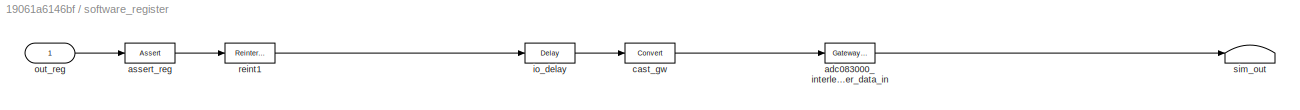
BLOCK [SubSystem] software_register
  AncestorBlock = xps_library/software_register
  AttributesFormatString = 1output:f8.7 = 8 bits
  FunctionWithSeparateData = off
  MaskHideContents = off
  MinAlgLoopOccurrences = off
  Opaque = off
  Ports = [1]
  PropExecContextOutsideSubsystem = off
  RTWSystemCode = Auto
  RequestExecContextInheritance = off
  Tag = xps:sw_reg
BLOCK [Reference] software_register/adc083000_interleave_software_register_user_data_in  REF=xbsIndex_r4/Gateway Out
  DACChannel = '1'
  LOCs = {}
  Ports = [1, 1]
  SourceBlock = xbsIndex_r4/Gateway Out
  SourceType = Xilinx Gateway Out Block
  UseAsDAC = off
  block_type = gatewayout
  has_advanced_control = 0
  hdl_port = on
  infoedit = Gateway out block.  Converts Xilinx fixed-point or floating-point type inputs into ouputs of type Simulink integer, single, double, or fixed-point.<br><br>Hardware notes:  In hardware these blocks become top level output ports or are discarded, depending on how they are configured.
  inherit_from_input = off
  locs_specified = off
  sg_icon_stat = 60,20,1,1,white,yellow,1,cc31b7ac,right,,[ ],[ ]
  sg_mask_display = fprintf('','COMMENT: begin icon graphics');\npatch([0 60 60 0 0 ],[0 0 20 20 0 ],[0.95 0.93 0.65 ]);\nplot([0 60 60 0 0 ],[0 0 20 20 0 ]);\npatch([25.55 28.44 30.44 32.44 34.44 30.44 27.55 25.55 ],[12.22 12.22 14.22 12.22 14.22 14.22 14.22 12.22 ],[1 1 1 ]);\npatch([27.55 30.44 28.44 25.55 27.55 ],[10.22 10.22 12.22 12.22 10.22 ],[0.985 0.979 0.895 ]);\npatch([25.55 28.44 30.44 27.55 25.55 ],[8.22 8.22...<+384ch>
  sggui_pos = -1,-1,-1,-1
  timing_constraint = None
  xl_area = [0,0,0,0,0,0,0]
  xl_use_area = off
BLOCK [Reference] software_register/assert_reg  REF=xbsIndex_r4/Assert
  Ports = [1, 1]
  SourceBlock = xbsIndex_r4/Assert
  SourceType = Xilinx Assert Block
  arith_type = Signed  (2's comp)
  assert_rate = off
  assert_type = on
  bin_pt = 7
  block_type = assert
  exp_width = 8
  frac_width = 24
  gui_display_data_type = Fixed-point
  has_advanced_control = 0
  infoedit = Asserts a user-defined sample rate and/or type on a signal.<br><br>Hardware notes: In hardware this block costs nothing.
  n_bits = 8
  output_port = on
  period = 1
  preci_type = Single
  rate_source = Explicitly
  sg_icon_stat = 60,30,1,1,white,blue,0,9657e937,right,,[ ],[ ]
  sg_mask_display = fprintf('','COMMENT: begin icon graphics');\npatch([0 60 60 0 0 ],[0 0 30 30 0 ],[0.77 0.82 0.91 ]);\nplot([0 60 60 0 0 ],[0 0 30 30 0 ]);\npatch([21.1 26.88 30.88 34.88 38.88 30.88 25.1 21.1 ],[19.44 19.44 23.44 19.44 23.44 23.44 23.44 19.44 ],[1 1 1 ]);\npatch([25.1 30.88 26.88 21.1 25.1 ],[15.44 15.44 19.44 19.44 15.44 ],[0.931 0.946 0.973 ]);\npatch([21.1 26.88 30.88 25.1 21.1 ],[11.44 11.44 15.44 ...<+289ch>
  sggui_pos = -1,-1,-1,-1
  type_source = Explicitly
BLOCK [Reference] software_register/cast_gw  REF=xbsIndex_r4/Convert
  Ports = [1, 1]
  SourceBlock = xbsIndex_r4/Convert
  SourceType = Xilinx Type Converter Block
  arith_type = Unsigned
  bin_pt = 0
  block_type = convert
  dbl_ovrd = off
  en = off
  exp_bits = 8
  float_type = Single
  fraction_bits = 24
  gui_display_data_type = Fixed-point
  has_advanced_control = 0
  infoedit = Hardware notes: rounding and saturating require hardware resources; truncating and wrapping do not.
  latency = 0
  n_bits = 32
  overflow = Wrap
  pipeline = off
  quantization = Truncate
  sg_icon_stat = 45,30,1,1,white,blue,0,edca21da,right,,[ ],[ ]
  sg_mask_display = fprintf('','COMMENT: begin icon graphics');\npatch([0 45 45 0 0 ],[0 0 30 30 0 ],[0.77 0.82 0.91 ]);\nplot([0 45 45 0 0 ],[0 0 30 30 0 ]);\npatch([13.1 18.88 22.88 26.88 30.88 22.88 17.1 13.1 ],[19.44 19.44 23.44 19.44 23.44 23.44 23.44 19.44 ],[1 1 1 ]);\npatch([17.1 22.88 18.88 13.1 17.1 ],[15.44 15.44 19.44 19.44 15.44 ],[0.931 0.946 0.973 ]);\npatch([13.1 18.88 22.88 17.1 13.1 ],[11.44 11.44 15.44 ...<+303ch>
  sggui_pos = -1,-1,-1,-1
  xl_area = [0,0,0,0,0,0,0]
  xl_use_area = off
BLOCK [Reference] software_register/io_delay  REF=xbsIndex_r4/Delay
  Ports = [1, 1]
  SourceBlock = xbsIndex_r4/Delay
  SourceType = Xilinx Delay Block
  block_type = delay
  dbl_ovrd = off
  en = off
  has_advanced_control = 0
  infoedit = Hardware notes: A delay line is a chain, each link of which is an SRL16 followed by a flip-flop.
  infoeditControl = Selection of Reset will increase slice count due to use of real FFs and instead of SRLs
  latency = 0
  reg_retiming = on
  rst = off
  sg_icon_stat = 50,20,1,1,white,blue,0,24450e6f,right,,[ ],[ ]
  sg_mask_display = fprintf('','COMMENT: begin icon graphics');\npatch([0 50 50 0 0 ],[0 0 20 20 0 ],[0.77 0.82 0.91 ]);\nplot([0 50 50 0 0 ],[0 0 20 20 0 ]);\npatch([20.55 23.44 25.44 27.44 29.44 25.44 22.55 20.55 ],[12.22 12.22 14.22 12.22 14.22 14.22 14.22 12.22 ],[1 1 1 ]);\npatch([22.55 25.44 23.44 20.55 22.55 ],[10.22 10.22 12.22 12.22 10.22 ],[0.931 0.946 0.973 ]);\npatch([20.55 23.44 25.44 22.55 20.55 ],[8.22 8.22...<+310ch>
  sggui_pos = -1,-1,-1,-1
  xl_area = [0,0,0,0,0,0,0]
  xl_use_area = off
BLOCK [Inport] software_register/out_reg
  IconDisplay = Port number
BLOCK [Reference] software_register/reint1  REF=xbsIndex_r4/Reinterpret
  Ports = [1, 1]
  SourceBlock = xbsIndex_r4/Reinterpret
  SourceType = Xilinx Type Reinterpreter Block
  arith_type = Unsigned
  bin_pt = 0
  block_type = reinterpret
  force_arith_type = on
  force_bin_pt = on
  has_advanced_control = 0
  infoedit = Changes signal type without altering the binary representation.   You can change the signal between signed and unsigned, and relocate the binary point.<br><br>Hardware notes: In hardware this block costs nothing.<br><br>Example:  Suppose the input is 6 bits wide, signed, with 2 fractional bits, and the output is forced to unsigned with 0 fractional bits.  Then an input of -2.0 (1110.00 in binary 2...<+58ch>
  sg_icon_stat = 50,32,1,1,white,blue,0,6b04d0b0,right,,[ ],[ ]
  sg_mask_display = fprintf('','COMMENT: begin icon graphics');\npatch([0 50 50 0 0 ],[0 0 32 32 0 ],[0.77 0.82 0.91 ]);\nplot([0 50 50 0 0 ],[0 0 32 32 0 ]);\npatch([16.1 21.88 25.88 29.88 33.88 25.88 20.1 16.1 ],[20.44 20.44 24.44 20.44 24.44 24.44 24.44 20.44 ],[1 1 1 ]);\npatch([20.1 25.88 21.88 16.1 20.1 ],[16.44 16.44 20.44 20.44 16.44 ],[0.931 0.946 0.973 ]);\npatch([16.1 21.88 25.88 20.1 16.1 ],[12.44 12.44 16.44 ...<+294ch>
  sggui_pos = -1,-1,-1,-1
BLOCK [Terminator] software_register/sim_out
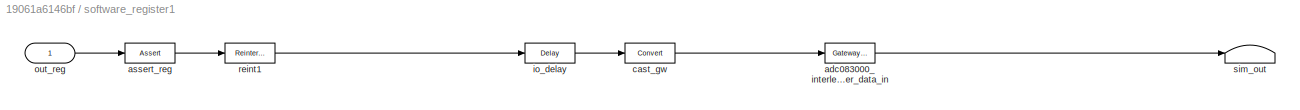
BLOCK [SubSystem] software_register1
  AncestorBlock = xps_library/software_register
  AttributesFormatString = 1output:f8.7 = 8 bits
  FunctionWithSeparateData = off
  MaskHideContents = off
  MinAlgLoopOccurrences = off
  Opaque = off
  Ports = [1]
  PropExecContextOutsideSubsystem = off
  RTWSystemCode = Auto
  RequestExecContextInheritance = off
  Tag = xps:sw_reg
BLOCK [Reference] software_register1/adc083000_interleave_software_register1_user_data_in  REF=xbsIndex_r4/Gateway Out
  DACChannel = '1'
  LOCs = {}
  Ports = [1, 1]
  SourceBlock = xbsIndex_r4/Gateway Out
  SourceType = Xilinx Gateway Out Block
  UseAsDAC = off
  block_type = gatewayout
  has_advanced_control = 0
  hdl_port = on
  infoedit = Gateway out block.  Converts Xilinx fixed-point or floating-point type inputs into ouputs of type Simulink integer, single, double, or fixed-point.<br><br>Hardware notes:  In hardware these blocks become top level output ports or are discarded, depending on how they are configured.
  inherit_from_input = off
  locs_specified = off
  sg_icon_stat = 60,20,1,1,white,yellow,1,cc31b7ac,right,,[ ],[ ]
  sg_mask_display = fprintf('','COMMENT: begin icon graphics');\npatch([0 60 60 0 0 ],[0 0 20 20 0 ],[0.95 0.93 0.65 ]);\nplot([0 60 60 0 0 ],[0 0 20 20 0 ]);\npatch([25.55 28.44 30.44 32.44 34.44 30.44 27.55 25.55 ],[12.22 12.22 14.22 12.22 14.22 14.22 14.22 12.22 ],[1 1 1 ]);\npatch([27.55 30.44 28.44 25.55 27.55 ],[10.22 10.22 12.22 12.22 10.22 ],[0.985 0.979 0.895 ]);\npatch([25.55 28.44 30.44 27.55 25.55 ],[8.22 8.22...<+384ch>
  sggui_pos = -1,-1,-1,-1
  timing_constraint = None
  xl_area = [0,0,0,0,0,0,0]
  xl_use_area = off
BLOCK [Reference] software_register1/assert_reg  REF=xbsIndex_r4/Assert
  Ports = [1, 1]
  SourceBlock = xbsIndex_r4/Assert
  SourceType = Xilinx Assert Block
  arith_type = Signed  (2's comp)
  assert_rate = off
  assert_type = on
  bin_pt = 7
  block_type = assert
  exp_width = 8
  frac_width = 24
  gui_display_data_type = Fixed-point
  has_advanced_control = 0
  infoedit = Asserts a user-defined sample rate and/or type on a signal.<br><br>Hardware notes: In hardware this block costs nothing.
  n_bits = 8
  output_port = on
  period = 1
  preci_type = Single
  rate_source = Explicitly
  sg_icon_stat = 60,30,1,1,white,blue,0,9657e937,right,,[ ],[ ]
  sg_mask_display = fprintf('','COMMENT: begin icon graphics');\npatch([0 60 60 0 0 ],[0 0 30 30 0 ],[0.77 0.82 0.91 ]);\nplot([0 60 60 0 0 ],[0 0 30 30 0 ]);\npatch([21.1 26.88 30.88 34.88 38.88 30.88 25.1 21.1 ],[19.44 19.44 23.44 19.44 23.44 23.44 23.44 19.44 ],[1 1 1 ]);\npatch([25.1 30.88 26.88 21.1 25.1 ],[15.44 15.44 19.44 19.44 15.44 ],[0.931 0.946 0.973 ]);\npatch([21.1 26.88 30.88 25.1 21.1 ],[11.44 11.44 15.44 ...<+289ch>
  sggui_pos = -1,-1,-1,-1
  type_source = Explicitly
BLOCK [Reference] software_register1/cast_gw  REF=xbsIndex_r4/Convert
  Ports = [1, 1]
  SourceBlock = xbsIndex_r4/Convert
  SourceType = Xilinx Type Converter Block
  arith_type = Unsigned
  bin_pt = 0
  block_type = convert
  dbl_ovrd = off
  en = off
  exp_bits = 8
  float_type = Single
  fraction_bits = 24
  gui_display_data_type = Fixed-point
  has_advanced_control = 0
  infoedit = Hardware notes: rounding and saturating require hardware resources; truncating and wrapping do not.
  latency = 0
  n_bits = 32
  overflow = Wrap
  pipeline = off
  quantization = Truncate
  sg_icon_stat = 45,30,1,1,white,blue,0,edca21da,right,,[ ],[ ]
  sg_mask_display = fprintf('','COMMENT: begin icon graphics');\npatch([0 45 45 0 0 ],[0 0 30 30 0 ],[0.77 0.82 0.91 ]);\nplot([0 45 45 0 0 ],[0 0 30 30 0 ]);\npatch([13.1 18.88 22.88 26.88 30.88 22.88 17.1 13.1 ],[19.44 19.44 23.44 19.44 23.44 23.44 23.44 19.44 ],[1 1 1 ]);\npatch([17.1 22.88 18.88 13.1 17.1 ],[15.44 15.44 19.44 19.44 15.44 ],[0.931 0.946 0.973 ]);\npatch([13.1 18.88 22.88 17.1 13.1 ],[11.44 11.44 15.44 ...<+303ch>
  sggui_pos = -1,-1,-1,-1
  xl_area = [0,0,0,0,0,0,0]
  xl_use_area = off
BLOCK [Reference] software_register1/io_delay  REF=xbsIndex_r4/Delay
  Ports = [1, 1]
  SourceBlock = xbsIndex_r4/Delay
  SourceType = Xilinx Delay Block
  block_type = delay
  dbl_ovrd = off
  en = off
  has_advanced_control = 0
  infoedit = Hardware notes: A delay line is a chain, each link of which is an SRL16 followed by a flip-flop.
  infoeditControl = Selection of Reset will increase slice count due to use of real FFs and instead of SRLs
  latency = 0
  reg_retiming = on
  rst = off
  sg_icon_stat = 50,20,1,1,white,blue,0,24450e6f,right,,[ ],[ ]
  sg_mask_display = fprintf('','COMMENT: begin icon graphics');\npatch([0 50 50 0 0 ],[0 0 20 20 0 ],[0.77 0.82 0.91 ]);\nplot([0 50 50 0 0 ],[0 0 20 20 0 ]);\npatch([20.55 23.44 25.44 27.44 29.44 25.44 22.55 20.55 ],[12.22 12.22 14.22 12.22 14.22 14.22 14.22 12.22 ],[1 1 1 ]);\npatch([22.55 25.44 23.44 20.55 22.55 ],[10.22 10.22 12.22 12.22 10.22 ],[0.931 0.946 0.973 ]);\npatch([20.55 23.44 25.44 22.55 20.55 ],[8.22 8.22...<+310ch>
  sggui_pos = -1,-1,-1,-1
  xl_area = [0,0,0,0,0,0,0]
  xl_use_area = off
BLOCK [Inport] software_register1/out_reg
  IconDisplay = Port number
BLOCK [Reference] software_register1/reint1  REF=xbsIndex_r4/Reinterpret
  Ports = [1, 1]
  SourceBlock = xbsIndex_r4/Reinterpret
  SourceType = Xilinx Type Reinterpreter Block
  arith_type = Unsigned
  bin_pt = 0
  block_type = reinterpret
  force_arith_type = on
  force_bin_pt = on
  has_advanced_control = 0
  infoedit = Changes signal type without altering the binary representation.   You can change the signal between signed and unsigned, and relocate the binary point.<br><br>Hardware notes: In hardware this block costs nothing.<br><br>Example:  Suppose the input is 6 bits wide, signed, with 2 fractional bits, and the output is forced to unsigned with 0 fractional bits.  Then an input of -2.0 (1110.00 in binary 2...<+58ch>
  sg_icon_stat = 50,32,1,1,white,blue,0,6b04d0b0,right,,[ ],[ ]
  sg_mask_display = fprintf('','COMMENT: begin icon graphics');\npatch([0 50 50 0 0 ],[0 0 32 32 0 ],[0.77 0.82 0.91 ]);\nplot([0 50 50 0 0 ],[0 0 32 32 0 ]);\npatch([16.1 21.88 25.88 29.88 33.88 25.88 20.1 16.1 ],[20.44 20.44 24.44 20.44 24.44 24.44 24.44 20.44 ],[1 1 1 ]);\npatch([20.1 25.88 21.88 16.1 20.1 ],[16.44 16.44 20.44 20.44 16.44 ],[0.931 0.946 0.973 ]);\npatch([16.1 21.88 25.88 20.1 16.1 ],[12.44 12.44 16.44 ...<+294ch>
  sggui_pos = -1,-1,-1,-1
BLOCK [Terminator] software_register1/sim_out
ANNOTATION (root): NOTE: Apparently there is a bug in the initialization script of the adc083000x2 block when using it in the interleave mode. If you are experiencing errors when ctrl-D this block, you can isntead copy-paste the block from this model, that hat the bug fixed. TODO: fix the initialization script of the adc block.
LINE Constant1:1 -> adc083000x2:2
LINE Constant2:1 -> adc083000x2:3
LINE Constant3:1 -> adc083000x2:4
LINE Constant4:1 -> adc083000x2:5
LINE Constant:1 -> adc083000x2:1
LINE adc083000x2:1 -> software_register:1
LINE adc083000x2:10 -> Terminator11:1
LINE adc083000x2:11 -> Terminator4:1
LINE adc083000x2:12 -> Terminator20:1
LINE adc083000x2:13 -> Terminator9:1
LINE adc083000x2:14 -> Terminator1:1
LINE adc083000x2:15 -> Terminator3:1
LINE adc083000x2:16 -> Terminator2:1
LINE adc083000x2:17 -> Terminator5:1
LINE adc083000x2:18 -> Terminator6:1
LINE adc083000x2:19 -> Terminator7:1
LINE adc083000x2:2 -> software_register1:1
LINE adc083000x2:20 -> Terminator14:1
LINE adc083000x2:21 -> Terminator16:1
LINE adc083000x2:22 -> Terminator15:1
LINE adc083000x2:3 -> Terminator22:1
LINE adc083000x2:4 -> Terminator19:1
LINE adc083000x2:5 -> Terminator13:1
LINE adc083000x2:6 -> Terminator17:1
LINE adc083000x2:7 -> Terminator18:1
LINE adc083000x2:8 -> Terminator10:1
LINE adc083000x2:9 -> Terminator12:1
